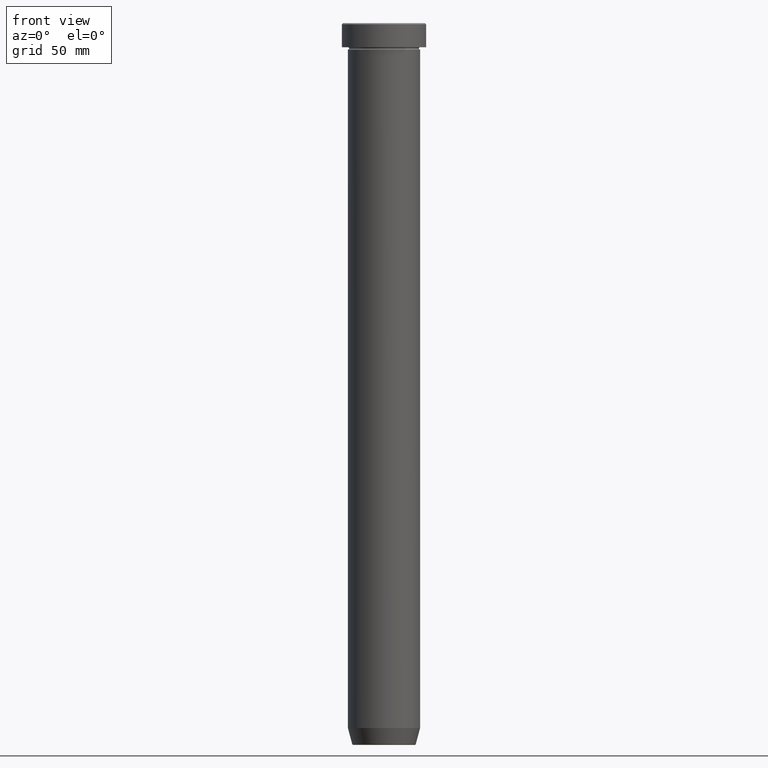
[diagram: clean part render]
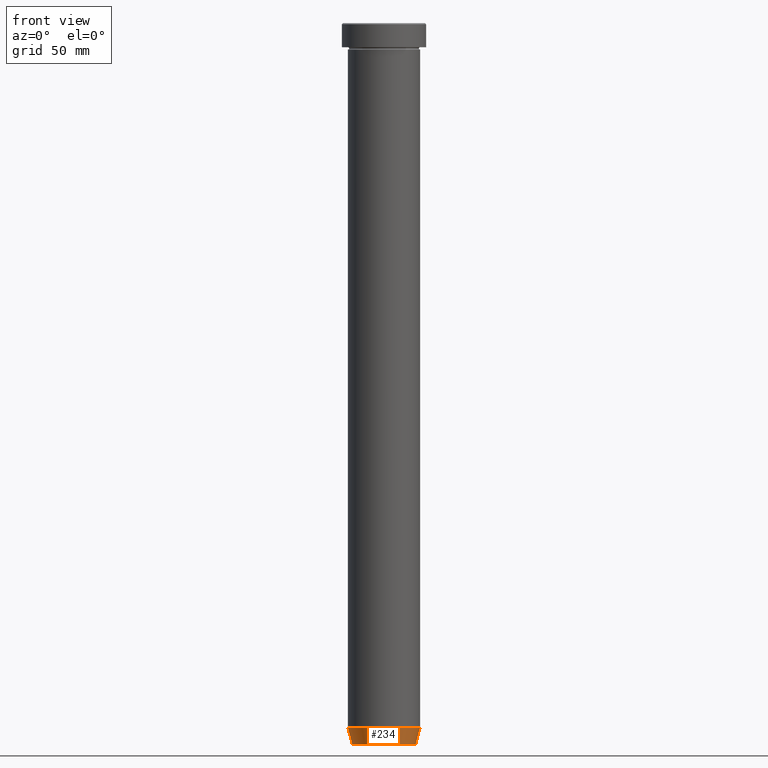
[diagram: same view with one face highlighted and labeled with its STEP entity id]
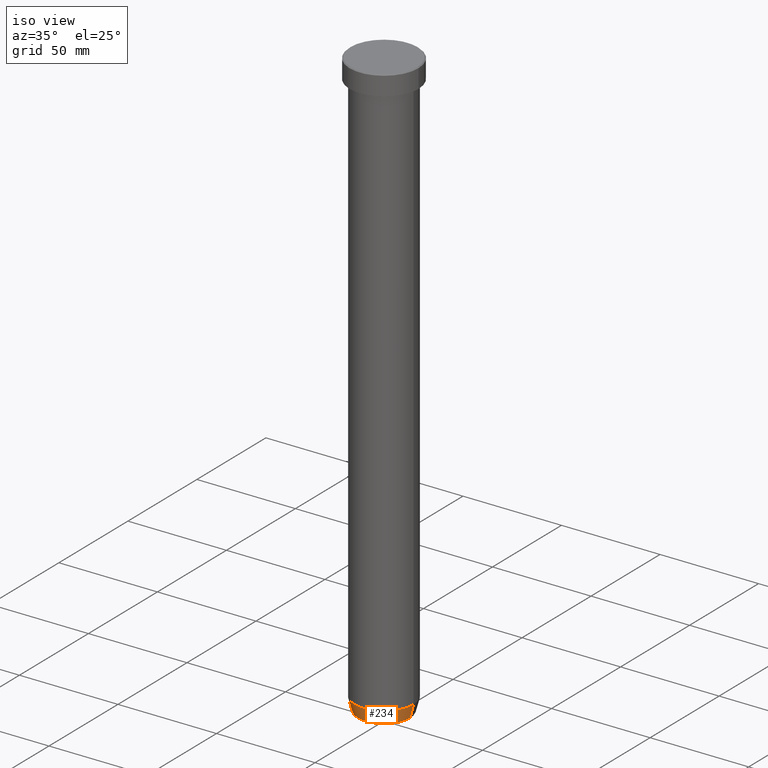
[diagram: same view with one face highlighted and labeled with its STEP entity id]
A machine part, front view. The second image highlights one B-rep face of the part: STEP entity #234.
A second angle (iso view) of the same face is appended — the face is thin or edge-on in the first view.
In plain terms, the highlighted conical surface has half-angle 15 deg.
Its self-contained STEP definition (entity closure, byte-faithful):
#50 = ORIENTED_EDGE ( 'NONE', *, *, #118, .T. ) ;
#109 = AXIS2_PLACEMENT_3D ( 'NONE', #549, #407, #552 ) ;
#111 = VECTOR ( 'NONE', #514, 1000.000000000000114 ) ;
#117 = AXIS2_PLACEMENT_3D ( 'NONE', #322, #426, #230 ) ;
#118 = EDGE_CURVE ( 'NONE', #332, #422, #415, .T. ) ;
#122 = VERTEX_POINT ( 'NONE', #593 ) ;
#130 = DIRECTION ( 'NONE',  ( -0.000000000000000000, -0.000000000000000000, 1.000000000000000000 ) ) ;
#135 = DIRECTION ( 'NONE',  ( 0.2588190451025210725, 0.000000000000000000, 0.9659258262890680902 ) ) ;
#143 = CARTESIAN_POINT ( 'NONE',  ( -13.22365507213718949, 1.728200442216588189E-15, -299.6294095225512137 ) ) ;
#147 = FACE_OUTER_BOUND ( 'NONE', #374, .T. ) ;
#172 = LINE ( 'NONE', #310, #111 ) ;
#177 = EDGE_CURVE ( 'NONE', #122, #209, #573, .T. ) ;
#209 = VERTEX_POINT ( 'NONE', #378 ) ;
#230 = DIRECTION ( 'NONE',  ( 1.000000000000000000, 0.000000000000000000, 0.000000000000000000 ) ) ;
#234 = ADVANCED_FACE ( 'NONE', ( #147 ), #545, .T. ) ;
#238 = ORIENTED_EDGE ( 'NONE', *, *, #177, .F. ) ;
#310 = CARTESIAN_POINT ( 'NONE',  ( -13.12435565298213547, 1.607270014129604385E-15, -300.0000000000000000 ) ) ;
#312 = DIRECTION ( 'NONE',  ( 1.000000000000000000, 0.000000000000000000, 0.000000000000000000 ) ) ;
#322 = CARTESIAN_POINT ( 'NONE',  ( 0.000000000000000000, 0.000000000000000000, -300.0000000000000000 ) ) ;
#332 = VERTEX_POINT ( 'NONE', #143 ) ;
#354 = LINE ( 'NONE', #358, #429 ) ;
#358 = CARTESIAN_POINT ( 'NONE',  ( 13.12435565298213547, 0.000000000000000000, -300.0000000000000000 ) ) ;
#374 = EDGE_LOOP ( 'NONE', ( #424, #50, #534, #238 ) ) ;
#378 = CARTESIAN_POINT ( 'NONE',  ( 15.00000000000000000, 0.000000000000000000, -293.0000000000000000 ) ) ;
#407 = DIRECTION ( 'NONE',  ( -0.000000000000000000, -0.000000000000000000, 1.000000000000000000 ) ) ;
#415 = CIRCLE ( 'NONE', #109, 13.22365507213718949 ) ;
#422 = VERTEX_POINT ( 'NONE', #441 ) ;
#424 = ORIENTED_EDGE ( 'NONE', *, *, #547, .F. ) ;
#426 = DIRECTION ( 'NONE',  ( -0.000000000000000000, -0.000000000000000000, 1.000000000000000000 ) ) ;
#429 = VECTOR ( 'NONE', #135, 1000.000000000000114 ) ;
#441 = CARTESIAN_POINT ( 'NONE',  ( 13.22365507213718949, 0.000000000000000000, -299.6294095225512137 ) ) ;
#444 = AXIS2_PLACEMENT_3D ( 'NONE', #451, #130, #312 ) ;
#451 = CARTESIAN_POINT ( 'NONE',  ( 0.000000000000000000, 0.000000000000000000, -293.0000000000000000 ) ) ;
#514 = DIRECTION ( 'NONE',  ( -0.2588190451025210725, 3.169619151431769255E-17, 0.9659258262890680902 ) ) ;
#534 = ORIENTED_EDGE ( 'NONE', *, *, #560, .T. ) ;
#545 = CONICAL_SURFACE ( 'NONE', #117, 13.12435565298213547, 0.2617993877991497964 ) ;
#547 = EDGE_CURVE ( 'NONE', #332, #122, #172, .T. ) ;
#549 = CARTESIAN_POINT ( 'NONE',  ( 0.000000000000000000, 0.000000000000000000, -299.6294095225512137 ) ) ;
#552 = DIRECTION ( 'NONE',  ( -1.000000000000000000, 0.000000000000000000, 0.000000000000000000 ) ) ;
#560 = EDGE_CURVE ( 'NONE', #422, #209, #354, .T. ) ;
#573 = CIRCLE ( 'NONE', #444, 15.00000000000000000 ) ;
#593 = CARTESIAN_POINT ( 'NONE',  ( -15.00000000000000000, 1.836970198721029589E-15, -293.0000000000000000 ) ) ;